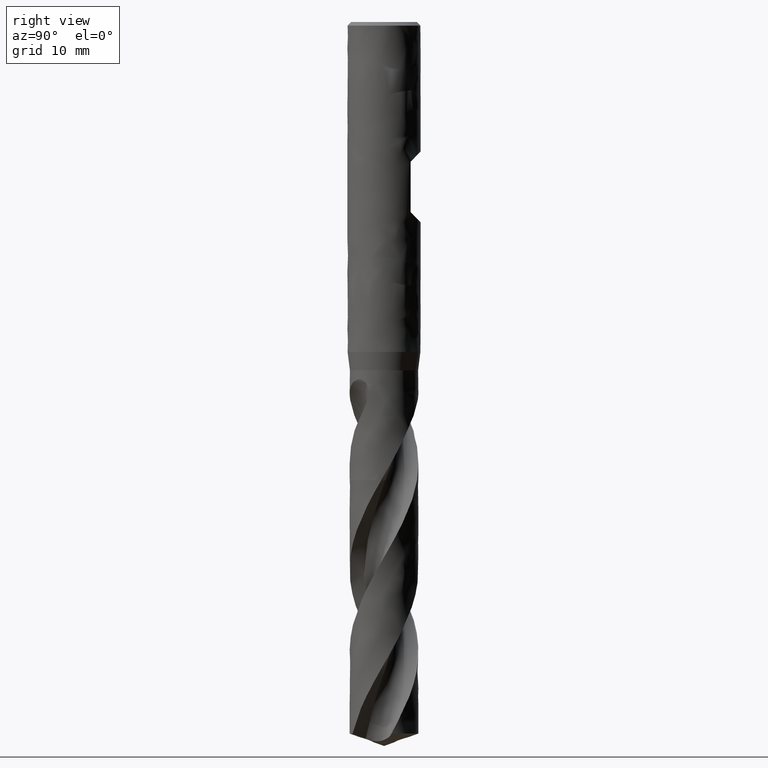
[diagram: clean part render]
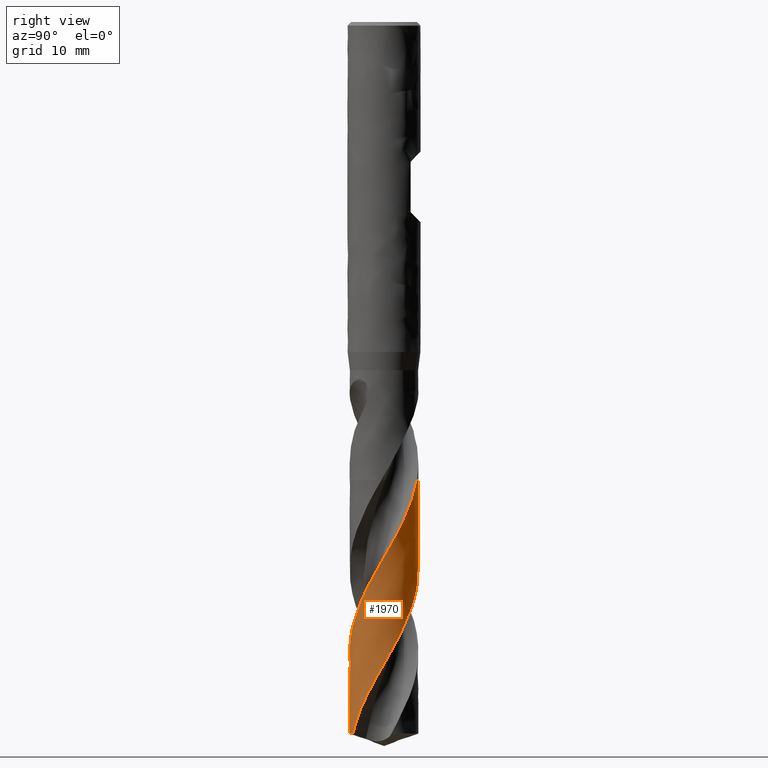
[diagram: same view with one face highlighted and labeled with its STEP entity id]
A machine part, right view. The second image highlights one B-rep face of the part: STEP entity #1970.
In plain terms, the highlighted face is a freeform B-spline surface patch.
Its self-contained STEP definition (entity closure, byte-faithful):
#1785 = VERTEX_POINT('', #1786);
#1786 = CARTESIAN_POINT('', (1.04154271346582, 3.60245593672238, -50.));
#1859 = EDGE_CURVE('', #1860, #1785, #1862, .T.);
#1860 = VERTEX_POINT('', #1861);
#1861 = CARTESIAN_POINT('', (-3.73763323144449, 0.30429891094419, -50.));
#1862 = CIRCLE('', #1863, 3.75);
#1863 = AXIS2_PLACEMENT_3D('', #1864, #1865, #1866);
#1864 = CARTESIAN_POINT('', (1.87469972832732E-31, 3.06161699786838E-15, -50.));
#1865 = DIRECTION('', (3.74939945665464E-33, 6.12323399573677E-17, -1.));
#1866 = DIRECTION('', (-1., 6.12323399573677E-17, 0.));
#1970 = ADVANCED_FACE('', (#1971), #2329, .T.);
#1971 = FACE_OUTER_BOUND('', #1972, .T.);
#1972 = EDGE_LOOP('', (#1973, #1974, #1995, #2142, #2157, #2166));
#1973 = ORIENTED_EDGE('', *, *, #1859, .T.);
#1974 = ORIENTED_EDGE('', *, *, #1975, .T.);
#1975 = EDGE_CURVE('', #1785, #1976, #1978, .T.);
#1976 = VERTEX_POINT('', #1977);
#1977 = CARTESIAN_POINT('', (2.12231105427422, 3.09164936383566, -52.0825378024235));
#1978 = B_SPLINE_CURVE_WITH_KNOTS('', 3, (#1979, #1980, #1981, #1982, #1983, #1984, #1985, #1986, #1987, #1988, #1989, #1990, #1991, #1992, #1993, #1994), .UNSPECIFIED., .F., .U., (4, 3, 3, 3, 3, 4), (4.22493399614493, 4.263254304105, 4.92914016551059, 5.59485713823136, 6.26040159204141, 6.62855283587075), .UNSPECIFIED.);
#1979 = CARTESIAN_POINT('', (1.04154271346582, 3.60245593672238, -50.));
#1980 = CARTESIAN_POINT('', (1.04767420185025, 3.60068319968917, -50.0110644891662));
#1981 = CARTESIAN_POINT('', (1.05380134570704, 3.59889475527219, -50.0221294699043));
#1982 = CARTESIAN_POINT('', (1.05992355171761, 3.59709077790834, -50.0331940497039));
#1983 = CARTESIAN_POINT('', (1.16630814620713, 3.56574335183506, -50.2254614829041));
#1984 = CARTESIAN_POINT('', (1.27129846578123, 3.52967297390715, -50.4177931305049));
#1985 = CARTESIAN_POINT('', (1.37444858898701, 3.48903870374506, -50.6100846204533));
#1986 = CARTESIAN_POINT('', (1.4775725502187, 3.44841473965618, -50.8023273394955));
#1987 = CARTESIAN_POINT('', (1.5789130772024, 3.40320656575116, -50.9946207052876));
#1988 = CARTESIAN_POINT('', (1.67802062703575, 3.3536169690712, -51.1868723277263));
#1989 = CARTESIAN_POINT('', (1.77710249339212, 3.30404022341285, -51.3790741286315));
#1990 = CARTESIAN_POINT('', (1.87399912467554, 3.25006105511055, -51.57132944958));
#1991 = CARTESIAN_POINT('', (1.96828265072365, 3.19192158532446, -51.7635455284882));
#1992 = CARTESIAN_POINT('', (2.02043633811225, 3.15976127207296, -51.8698713916653));
#1993 = CARTESIAN_POINT('', (2.0718020113401, 3.12632208623874, -51.9762075577137));
#1994 = CARTESIAN_POINT('', (2.12231105427424, 3.09164936383565, -52.0825378024235));
#1995 = ORIENTED_EDGE('', *, *, #1996, .T.);
#1996 = EDGE_CURVE('', #1976, #1997, #1999, .T.);
#1997 = VERTEX_POINT('', #1998);
#1998 = CARTESIAN_POINT('', (-3.43617038302737, -1.50174335317507, -76.3470629619583));
#1999 = B_SPLINE_CURVE_WITH_KNOTS('', 3, (#2000, #2001, #2002, #2003, #2004, #2005, #2006, #2007, #2008, #2009, #2010, #2011, #2012, #2013, #2014, #2015, #2016, #2017, #2018, #2019, #2020, #2021, #2022, #2023, #2024, #2025, #2026, #2027, #2028, #2029, #2030, #2031, #2032, #2033, #2034, #2035, #2036, #2037, #2038, #2039, #2040, #2041, #2042, #2043, #2044, #2045, #2046, #2047, #2048, #2049, #2050, #2051, #2052, #2053, #2054, #2055, #2056, #2057, #2058, #2059, #2060, #2061, #2062, #2063, #2064, #2065, #2066, #2067, #2068, #2069, #2070, #2071, #2072, #2073, #2074, #2075, #2076, #2077, #2078, #2079, #2080, #2081, #2082, #2083, #2084, #2085, #2086, #2087, #2088, #2089, #2090, #2091, #2092, #2093, #2094, #2095, #2096, #2097, #2098, #2099, #2100, #2101, #2102, #2103, #2104, #2105, #2106, #2107, #2108, #2109, #2110, #2111, #2112, #2113, #2114, #2115, #2116, #2117, #2118, #2119, #2120, #2121, #2122, #2123, #2124, #2125, #2126, #2127, #2128, #2129, #2130, #2131, #2132, #2133, #2134, #2135, #2136, #2137, #2138, #2139, #2140, #2141), .UNSPECIFIED., .F., .U., (4, 3, 3, 3, 3, 3, 3, 3, 3, 3, 3, 3, 3, 3, 3, 3, 3, 3, 3, 3, 3, 3, 3, 3, 3, 3, 3, 3, 3, 3, 3, 3, 3, 3, 3, 3, 3, 3, 3, 3, 3, 3, 3, 3, 3, 3, 3, 4), (0., 0.665283470093486, 1.33040322736771, 1.99536141557755, 2.66015908448309, 3.32479662870843, 3.9892737271427, 4.65358932876156, 5.31774195596763, 5.98172952567648, 6.64554920333383, 7.08830369718782, 7.28522671845545, 7.34361981511167, 8.01007826994293, 8.67634573911524, 9.34242935375426, 10.00833533205, 10.6740689170003, 11.3396344499327, 12.0050354250086, 12.6702745328975, 13.3353538178533, 14.0002748196554, 14.66503844812, 15.3296449731223, 15.9940940069931, 16.6583844795854, 17.3225146783069, 17.9864823354714, 18.6502844992903, 19.0930317859526, 19.1514062897894, 19.2098003654347, 19.8762377769943, 20.5424879373031, 21.2085578515747, 21.8744535281951, 22.5401800546359, 23.2057416689705, 23.8711418130003, 24.5363831776135, 25.2014678160893, 25.866397200264, 26.5311722105091, 27.1957931501971, 27.8602596743903, 27.9470729952028), .UNSPECIFIED.);
#2000 = CARTESIAN_POINT('', (2.12231105427422, 3.09164936383566, -52.0825378024235));
#2001 = CARTESIAN_POINT('', (2.213585583201, 3.0289925360657, -52.2746864243883));
#2002 = CARTESIAN_POINT('', (2.30209277909004, 2.96228272301321, -52.4668903628572));
#2003 = CARTESIAN_POINT('', (2.38744393614361, 2.89181801843946, -52.6590567387373));
#2004 = CARTESIAN_POINT('', (2.47277409000203, 2.8213706538057, -52.8511758263553));
#2005 = CARTESIAN_POINT('', (2.55499204850613, 2.74713537491073, -53.0433505011951));
#2006 = CARTESIAN_POINT('', (2.63373817416214, 2.66944249422255, -53.235487624503));
#2007 = CARTESIAN_POINT('', (2.71246517102562, 2.59176848647552, -53.4275780743887));
#2008 = CARTESIAN_POINT('', (2.78776060948934, 2.5106005475806, -53.6197242660085));
#2009 = CARTESIAN_POINT('', (2.85929672146781, 2.42629805642329, -53.8118325873265));
#2010 = CARTESIAN_POINT('', (2.93081556480123, 2.34201591568422, -54.0038945341586));
#2011 = CARTESIAN_POINT('', (2.99861112438257, 2.25456046014206, -54.1960124266926));
#2012 = CARTESIAN_POINT('', (3.06238971820787, 2.16431726274471, -54.3880922848595));
#2013 = CARTESIAN_POINT('', (3.12615295017585, 2.07409580152935, -54.5801258782345));
#2014 = CARTESIAN_POINT('', (3.18593126223863, 1.98104536683587, -54.7722154315133));
#2015 = CARTESIAN_POINT('', (3.24146671214938, 1.88557512553265, -54.9642670121578));
#2016 = CARTESIAN_POINT('', (3.29698875561135, 1.79012793107433, -55.1562722308896));
#2017 = CARTESIAN_POINT('', (3.34829637305584, 1.6922166872033, -55.3483330257061));
#2018 = CARTESIAN_POINT('', (3.3951685530711, 1.59227211752173, -55.5403563315629));
#2019 = CARTESIAN_POINT('', (3.44202934110938, 1.49235183871452, -55.7323329674104));
#2020 = CARTESIAN_POINT('', (3.48447969957298, 1.3903504313866, -55.9243646531916));
#2021 = CARTESIAN_POINT('', (3.52233723307764, 1.28671691388393, -56.1163592507478));
#2022 = CARTESIAN_POINT('', (3.56018547911521, 1.18310882045924, -56.308306746886));
#2023 = CARTESIAN_POINT('', (3.59346182054115, 1.07781836550222, -56.5003091874188));
#2024 = CARTESIAN_POINT('', (3.62202440873106, 0.971307975132732, -56.6922745054431));
#2025 = CARTESIAN_POINT('', (3.65057989844823, 0.864824055092111, -56.8841921155858));
#2026 = CARTESIAN_POINT('', (3.67443788310127, 0.757069127260198, -57.0761648891203));
#2027 = CARTESIAN_POINT('', (3.69349821235449, 0.648514421839836, -57.268100269087));
#2028 = CARTESIAN_POINT('', (3.71255372212325, 0.539987164933608, -57.459987117385));
#2029 = CARTESIAN_POINT('', (3.7268230755531, 0.430609118553042, -57.6519293775329));
#2030 = CARTESIAN_POINT('', (3.73624825760316, 0.320856599679057, -57.8438340180137));
#2031 = CARTESIAN_POINT('', (3.74253466616938, 0.247653857159071, -57.9718305882029));
#2032 = CARTESIAN_POINT('', (3.74666886677116, 0.174265562086716, -58.0998449305073));
#2033 = CARTESIAN_POINT('', (3.74864408651438, 0.100834084717466, -58.227849614264));
#2034 = CARTESIAN_POINT('', (3.74952260100695, 0.0681741149589963, -58.2847819987156));
#2035 = CARTESIAN_POINT('', (3.7499742382828, 0.0355033182866061, -58.3417163596757));
#2036 = CARTESIAN_POINT('', (3.74999892899185, 0.0028341771224092, -58.3986502548319));
#2037 = CARTESIAN_POINT('', (3.75000625046677, -0.00685312254116855, -58.4155327220084));
#2038 = CARTESIAN_POINT('', (3.7499760340604, -0.0165403526150887, -58.4324152871231));
#2039 = CARTESIAN_POINT('', (3.74990828352115, -0.0262271839785083, -58.4492978886508));
#2040 = CARTESIAN_POINT('', (3.7491350256827, -0.136785983431871, -58.6419842363878));
#2041 = CARTESIAN_POINT('', (3.74346753331175, -0.247321021714624, -58.8347264611532));
#2042 = CARTESIAN_POINT('', (3.73293483056548, -0.357347940743925, -59.0274309341948));
#2043 = CARTESIAN_POINT('', (3.72240514615465, -0.467343329580334, -59.2200801843031));
#2044 = CARTESIAN_POINT('', (3.70700791415603, -0.576884056691584, -59.4127847368436));
#2045 = CARTESIAN_POINT('', (3.68681491304155, -0.685489457961146, -59.6054520742608));
#2046 = CARTESIAN_POINT('', (3.66662748412587, -0.794064889892137, -59.7980662456973));
#2047 = CARTESIAN_POINT('', (3.64163698054536, -0.901759035050428, -59.9907354225905));
#2048 = CARTESIAN_POINT('', (3.61195718787033, -1.00809983285016, -60.1833675081149));
#2049 = CARTESIAN_POINT('', (3.58228531043255, -1.11441227086135, -60.375948221021));
#2050 = CARTESIAN_POINT('', (3.54791217555302, -1.21942407740834, -60.5685840932194));
#2051 = CARTESIAN_POINT('', (3.50899218307219, -1.32267677802952, -60.7611826388259));
#2052 = CARTESIAN_POINT('', (3.47008226640975, -1.42590274803246, -60.9537313234779));
#2053 = CARTESIAN_POINT('', (3.42660932795612, -1.52741979446514, -61.1463354607928));
#2054 = CARTESIAN_POINT('', (3.37876674298655, -1.62678680117837, -61.3389019778701));
#2055 = CARTESIAN_POINT('', (3.3309362349846, -1.7261287245454, -61.5314198851243));
#2056 = CARTESIAN_POINT('', (3.27871600116128, -1.8233680554336, -61.723993404359));
#2057 = CARTESIAN_POINT('', (3.22233682058247, -1.91808378719973, -61.9165292140174));
#2058 = CARTESIAN_POINT('', (3.16597157948318, -2.01277610095962, -62.1090174201287));
#2059 = CARTESIAN_POINT('', (3.10542322847474, -2.10499009608542, -62.3015610278939));
#2060 = CARTESIAN_POINT('', (3.04095868081014, -2.19432684475341, -62.4940672657491));
#2061 = CARTESIAN_POINT('', (2.97650981496054, -2.28364186112953, -62.6865266740318));
#2062 = CARTESIAN_POINT('', (2.90811592594204, -2.37012355026953, -62.8790408988907));
#2063 = CARTESIAN_POINT('', (2.8360786202381, -2.45339724867954, -63.0715183522095));
#2064 = CARTESIAN_POINT('', (2.76405862141427, -2.53665094067897, -63.2639495630409));
#2065 = CARTESIAN_POINT('', (2.68836175959992, -2.61673885486776, -63.4564352038427));
#2066 = CARTESIAN_POINT('', (2.60932136643278, -2.69331431635399, -63.6488842706378));
#2067 = CARTESIAN_POINT('', (2.53029978419989, -2.76987155353852, -63.841287536209));
#2068 = CARTESIAN_POINT('', (2.44789786475326, -2.84295526340649, -64.0337453678945));
#2069 = CARTESIAN_POINT('', (2.36247684065302, -2.91225053478887, -64.2261663948955));
#2070 = CARTESIAN_POINT('', (2.27707603397955, -2.98152940538364, -64.4185418797356));
#2071 = CARTESIAN_POINT('', (2.1886171021705, -3.04705451343843, -64.6109722595724));
#2072 = CARTESIAN_POINT('', (2.09748577038466, -3.10854522936917, -64.8033655003063));
#2073 = CARTESIAN_POINT('', (2.00637597564919, -3.17002141321068, -64.9957132727821));
#2074 = CARTESIAN_POINT('', (1.91255297931991, -3.2274935411592, -65.1881161587416));
#2075 = CARTESIAN_POINT('', (1.8164242283328, -3.28071684586244, -65.3804817599362));
#2076 = CARTESIAN_POINT('', (1.72031825687793, -3.33392753829335, -65.5728017764502));
#2077 = CARTESIAN_POINT('', (1.62186352883123, -3.38291583066813, -65.7651767486659));
#2078 = CARTESIAN_POINT('', (1.52148718809817, -3.42747381265752, -65.9575147343896));
#2079 = CARTESIAN_POINT('', (1.42113480074619, -3.47202116152048, -66.1498068213983));
#2080 = CARTESIAN_POINT('', (1.31881455933111, -3.51216119989166, -66.3421532659661));
#2081 = CARTESIAN_POINT('', (1.21497126083361, -3.5477238950274, -66.5344633768182));
#2082 = CARTESIAN_POINT('', (1.11115301668823, -3.58327800992446, -66.7267270888626));
#2083 = CARTESIAN_POINT('', (1.00576216428679, -3.61427419241133, -66.9190446896966));
#2084 = CARTESIAN_POINT('', (0.899256904697844, -3.64058196163103, -67.1113262250328));
#2085 = CARTESIAN_POINT('', (0.792777711580138, -3.66688329219491, -67.3035607007108));
#2086 = CARTESIAN_POINT('', (0.685133188818503, -3.68851125536604, -67.4958491783892));
#2087 = CARTESIAN_POINT('', (0.57678958488493, -3.70537633375725, -67.6881013690482));
#2088 = CARTESIAN_POINT('', (0.468472985497883, -3.72223720854274, -67.8803056410203));
#2089 = CARTESIAN_POINT('', (0.359406661445659, -3.73434556793546, -68.0725642717913));
#2090 = CARTESIAN_POINT('', (0.250060579950962, -3.74165333861313, -68.2647862474213));
#2091 = CARTESIAN_POINT('', (0.177128186042495, -3.74652752525403, -68.3929957694533));
#2092 = CARTESIAN_POINT('', (0.104052928374972, -3.7492684363103, -68.5212229128423));
#2093 = CARTESIAN_POINT('', (0.030974511340315, -3.74987207510432, -68.6494405165488));
#2094 = CARTESIAN_POINT('', (0.0213394069272952, -3.74995166252622, -68.6663455077819));
#2095 = CARTESIAN_POINT('', (0.0117040934227084, -3.74999411351618, -68.6832505954643));
#2096 = CARTESIAN_POINT('', (0.00206888815204913, -3.74999942929353, -68.7001557157222));
#2097 = CARTESIAN_POINT('', (-0.00756954761105747, -3.75000474685315, -68.7170665039302));
#2098 = CARTESIAN_POINT('', (-0.0172079093051034, -3.74997290429461, -68.7339773868632));
#2099 = CARTESIAN_POINT('', (-0.0268458720355188, -3.74990390532272, -68.7508883047449));
#2100 = CARTESIAN_POINT('', (-0.136841601290173, -3.74911643680444, -68.9438885058034));
#2101 = CARTESIAN_POINT('', (-0.246812701957823, -3.74348449290427, -69.1369435117987));
#2102 = CARTESIAN_POINT('', (-0.356281887935761, -3.73303672850022, -69.3299619039531));
#2103 = CARTESIAN_POINT('', (-0.465720315973601, -3.72259189964108, -69.5229260630547));
#2104 = CARTESIAN_POINT('', (-0.574709889714728, -3.70732888404041, -69.7159443951869));
#2105 = CARTESIAN_POINT('', (-0.682776929770256, -3.68731822117034, -69.9089265676905));
#2106 = CARTESIAN_POINT('', (-0.790814733576567, -3.66731297194653, -70.1018565311682));
#2107 = CARTESIAN_POINT('', (-0.897983085641512, -3.64255293153597, -70.2948406265066));
#2108 = CARTESIAN_POINT('', (-1.00381752273178, -3.61314964830648, -70.487788460691));
#2109 = CARTESIAN_POINT('', (-1.10962427452454, -3.5837540567005, -70.680685821529));
#2110 = CARTESIAN_POINT('', (-1.21414821931862, -3.54970370488631, -70.8736376443916));
#2111 = CARTESIAN_POINT('', (-1.31693869758027, -3.5111497357441, -71.0665528340248));
#2112 = CARTESIAN_POINT('', (-1.41970306510344, -3.47260556004407, -71.2594190195269));
#2113 = CARTESIAN_POINT('', (-1.52078226116081, -3.42954232897492, -71.4523400234995));
#2114 = CARTESIAN_POINT('', (-1.61974270087863, -3.38214925497833, -71.6452240874628));
#2115 = CARTESIAN_POINT('', (-1.71867862636443, -3.33476792107521, -71.8380603706694));
#2116 = CARTESIAN_POINT('', (-1.81554154976261, -3.28303750249832, -72.0309515421644));
#2117 = CARTESIAN_POINT('', (-1.90991712061362, -3.22718400349081, -72.2238058357393));
#2118 = CARTESIAN_POINT('', (-2.00426979523404, -3.17134405496656, -72.4166133413971));
#2119 = CARTESIAN_POINT('', (-2.09617941634956, -3.11135747974953, -72.6094752644192));
#2120 = CARTESIAN_POINT('', (-2.18525229444416, -3.04748624437035, -72.8023009602595));
#2121 = CARTESIAN_POINT('', (-2.27430391774981, -2.98363025010224, -72.9950806435587));
#2122 = CARTESIAN_POINT('', (-2.36056246499844, -2.91586105106417, -73.1879140302543));
#2123 = CARTESIAN_POINT('', (-2.443657732203, -2.84447480000166, -73.3807117627039));
#2124 = CARTESIAN_POINT('', (-2.52673342275322, -2.77310536703251, -73.573464073378));
#2125 = CARTESIAN_POINT('', (-2.6066875137802, -2.6980860769482, -73.7662699414706));
#2126 = CARTESIAN_POINT('', (-2.68317772477383, -2.61974374649078, -73.9590401323031));
#2127 = CARTESIAN_POINT('', (-2.75965008024416, -2.5414197039069, -74.1517653237483));
#2128 = CARTESIAN_POINT('', (-2.83269652092587, -2.45973702407826, -74.3445443969522));
#2129 = CARTESIAN_POINT('', (-2.9020061853436, -2.375049494269, -74.5372874096103));
#2130 = CARTESIAN_POINT('', (-2.97129975842065, -2.29038162601641, -74.7299856739133));
#2131 = CARTESIAN_POINT('', (-3.03689011555356, -2.20267151171315, -74.9227382377164));
#2132 = CARTESIAN_POINT('', (-3.09849998756297, -2.11229681320412, -75.1154543651941));
#2133 = CARTESIAN_POINT('', (-3.16009558065521, -2.02194306024799, -75.3081258281151));
#2134 = CARTESIAN_POINT('', (-3.21774007056463, -1.92888561621939, -75.5008517511924));
#2135 = CARTESIAN_POINT('', (-3.27119099994329, -1.83352377729061, -75.6935412117512));
#2136 = CARTESIAN_POINT('', (-3.32462951073683, -1.73818409436785, -75.8861859035755));
#2137 = CARTESIAN_POINT('', (-3.37390039211795, -1.64049823584966, -76.0788846604013));
#2138 = CARTESIAN_POINT('', (-3.41879671278301, -1.54088579611341, -76.2715475501965));
#2139 = CARTESIAN_POINT('', (-3.42466246906612, -1.52787131551449, -76.2967191798445));
#2140 = CARTESIAN_POINT('', (-3.43045383234444, -1.51482351238353, -76.321891048552));
#2141 = CARTESIAN_POINT('', (-3.43617038302737, -1.50174335317507, -76.3470629619583));
#2142 = ORIENTED_EDGE('', *, *, #2143, .T.);
#2143 = EDGE_CURVE('', #1997, #2144, #2146, .T.);
#2144 = VERTEX_POINT('', #2145);
#2145 = CARTESIAN_POINT('', (-3.66180923674555, -0.808488165457586, -77.6351116215018));
#2146 = B_SPLINE_CURVE_WITH_KNOTS('', 3, (#2147, #2148, #2149, #2150, #2151, #2152, #2153, #2154, #2155, #2156), .UNSPECIFIED., .F., .U., (4, 3, 3, 4), (0., 0.664293426355206, 1.32842970530103, 1.48052746733488), .UNSPECIFIED.);
#2147 = CARTESIAN_POINT('', (-3.43617038302737, -1.50174335317508, -76.3470629619583));
#2148 = CARTESIAN_POINT('', (-3.4799132902743, -1.4016542919972, -76.5396778331339));
#2149 = CARTESIAN_POINT('', (-3.51928408531012, -1.29964048826153, -76.7323444475238));
#2150 = CARTESIAN_POINT('', (-3.5541174590951, -1.19613924229375, -76.9249733105058));
#2151 = CARTESIAN_POINT('', (-3.58894259258409, -1.09266248091671, -77.1175566045786));
#2152 = CARTESIAN_POINT('', (-3.61924889566017, -0.987650045064768, -77.3101908126515));
#2153 = CARTESIAN_POINT('', (-3.64490951693937, -0.881552388303765, -77.5027872170026));
#2154 = CARTESIAN_POINT('', (-3.65078620699936, -0.857254338849218, -77.5468948542544));
#2155 = CARTESIAN_POINT('', (-3.65641985113987, -0.832897801658125, -77.5910033621771));
#2156 = CARTESIAN_POINT('', (-3.66180923674555, -0.808488165457571, -77.6351116215018));
#2157 = ORIENTED_EDGE('', *, *, #2158, .F.);
#2158 = EDGE_CURVE('', #2159, #2144, #2161, .T.);
#2159 = VERTEX_POINT('', #2160);
#2160 = CARTESIAN_POINT('', (1.5221107578736, -3.42719693638481, -77.6351116215018));
#2161 = CIRCLE('', #2162, 3.75);
#2162 = AXIS2_PLACEMENT_3D('', #2163, #2164, #2165);
#2163 = CARTESIAN_POINT('', (2.91085045330981E-31, 4.75377954743598E-15, -77.6351116215018));
#2164 = DIRECTION('', (3.74939945665464E-33, 6.12323399573677E-17, -1.));
#2165 = DIRECTION('', (-1., 6.12323399573677E-17, 0.));
#2166 = ORIENTED_EDGE('', *, *, #2167, .T.);
#2167 = EDGE_CURVE('', #2159, #1860, #2168, .T.);
#2168 = B_SPLINE_CURVE_WITH_KNOTS('', 3, (#2169, #2170, #2171, #2172, #2173, #2174, #2175, #2176, #2177, #2178, #2179, #2180, #2181, #2182, #2183, #2184, #2185, #2186, #2187, #2188, #2189, #2190, #2191, #2192, #2193, #2194, #2195, #2196, #2197, #2198, #2199, #2200, #2201, #2202, #2203, #2204, #2205, #2206, #2207, #2208, #2209, #2210, #2211, #2212, #2213, #2214, #2215, #2216, #2217, #2218, #2219, #2220, #2221, #2222, #2223, #2224, #2225, #2226, #2227, #2228, #2229, #2230, #2231, #2232, #2233, #2234, #2235, #2236, #2237, #2238, #2239, #2240, #2241, #2242, #2243, #2244, #2245, #2246, #2247, #2248, #2249, #2250, #2251, #2252, #2253, #2254, #2255, #2256, #2257, #2258, #2259, #2260, #2261, #2262, #2263, #2264, #2265, #2266, #2267, #2268, #2269, #2270, #2271, #2272, #2273, #2274, #2275, #2276, #2277, #2278, #2279, #2280, #2281, #2282, #2283, #2284, #2285, #2286, #2287, #2288, #2289, #2290, #2291, #2292, #2293, #2294, #2295, #2296, #2297, #2298, #2299, #2300, #2301, #2302, #2303, #2304, #2305, #2306, #2307, #2308, #2309, #2310, #2311, #2312, #2313, #2314, #2315, #2316, #2317, #2318, #2319, #2320, #2321, #2322, #2323, #2324, #2325, #2326, #2327, #2328), .UNSPECIFIED., .F., .U., (4, 3, 3, 3, 3, 3, 3, 3, 3, 3, 3, 3, 3, 3, 3, 3, 3, 3, 3, 3, 3, 3, 3, 3, 3, 3, 3, 3, 3, 3, 3, 3, 3, 3, 3, 3, 3, 3, 3, 3, 3, 3, 3, 3, 3, 3, 3, 3, 3, 3, 3, 3, 3, 4), (0., 0.665615938312986, 1.33106981870901, 1.99636416962055, 2.66150093696937, 3.32648136471202, 3.99130600834454, 4.6559747032928, 5.32048666550956, 5.9848407622031, 6.64903524772549, 7.31306767066533, 7.97693481026115, 8.64063260041697, 8.72818589533489, 8.78657893060514, 9.45301977852953, 10.1192743999425, 10.7853492978207, 11.4512500258956, 12.1169812115842, 12.7825466166352, 13.4479491801268, 14.1131910653878, 14.7782738926021, 15.4431987304651, 16.1079660182511, 16.7725755497115, 17.4370264467215, 18.1013171321927, 18.7654454497467, 19.4294086559326, 20.0932032863486, 20.5359457280914, 20.5943201300035, 20.6527100747837, 21.319163783734, 21.9854291554748, 22.6515127785368, 23.3174202406249, 23.9831562113989, 24.648724504469, 25.3141281226992, 25.9793693194891, 26.6444497273156, 27.3093703814855, 27.9741316618367, 28.6387334378232, 29.3031746457987, 29.9674539015797, 30.631569509236, 31.0744577419147, 31.7382962043755, 31.8302924041851), .UNSPECIFIED.);
#2169 = CARTESIAN_POINT('', (1.5221107578736, -3.42719693638481, -77.6351116215017));
#2170 = CARTESIAN_POINT('', (1.62236692302693, -3.3826704646484, -77.4422560539828));
#2171 = CARTESIAN_POINT('', (1.72069883412994, -3.33372664299402, -77.2493600066725));
#2172 = CARTESIAN_POINT('', (1.81668139565208, -3.28057444766791, -77.0565145574775));
#2173 = CARTESIAN_POINT('', (1.91264058824164, -3.22743519333909, -76.8637160604811));
#2174 = CARTESIAN_POINT('', (2.00629581587175, -3.17006513541411, -76.6708769067174));
#2175 = CARTESIAN_POINT('', (2.09724262560069, -3.10870927707361, -76.4780885671205));
#2176 = CARTESIAN_POINT('', (2.18816763262007, -3.04736812759384, -76.2853464447376));
#2177 = CARTESIAN_POINT('', (2.2764270200649, -2.9820150866588, -76.0925636074894));
#2178 = CARTESIAN_POINT('', (2.36163944318696, -2.91292964906185, -75.8998315019145));
#2179 = CARTESIAN_POINT('', (2.44683168264564, -2.84386057524338, -75.7071450474289));
#2180 = CARTESIAN_POINT('', (2.52901775202632, -2.77102892566939, -75.5144181584115));
#2181 = CARTESIAN_POINT('', (2.60784156161221, -2.69474718471473, -75.3217416746268));
#2182 = CARTESIAN_POINT('', (2.68664684375539, -2.61848337369258, -75.1291104792204));
#2183 = CARTESIAN_POINT('', (2.76212866593491, -2.53873502392703, -74.9364391814636));
#2184 = CARTESIAN_POINT('', (2.83395898228344, -2.45584537109627, -74.7438179730886));
#2185 = CARTESIAN_POINT('', (2.90577247103608, -2.37297513671795, -74.5512418898365));
#2186 = CARTESIAN_POINT('', (2.97397062898739, -2.28692527945758, -74.3586258586149));
#2187 = CARTESIAN_POINT('', (3.03825656558671, -2.19806665996944, -74.1660598573279));
#2188 = CARTESIAN_POINT('', (3.10252742255966, -2.10922888415028, -73.9735390264701));
#2189 = CARTESIAN_POINT('', (3.16291856480814, -2.01754131901503, -73.7809779923776));
#2190 = CARTESIAN_POINT('', (3.21916738439106, -1.9233983860014, -73.5884673634716));
#2191 = CARTESIAN_POINT('', (3.27540294017624, -1.82927765243714, -73.3960021296878));
#2192 = CARTESIAN_POINT('', (3.32752425428568, -1.73265904736924, -73.2034962752513));
#2193 = CARTESIAN_POINT('', (3.37530496920152, -1.63395727143752, -73.0110411398388));
#2194 = CARTESIAN_POINT('', (3.42307433303868, -1.53527894370296, -72.8186317252446));
#2195 = CARTESIAN_POINT('', (3.46652703645686, -1.43447324000702, -72.6261816290163));
#2196 = CARTESIAN_POINT('', (3.50547400442724, -1.33197297430723, -72.4337822097662));
#2197 = CARTESIAN_POINT('', (3.54441161538274, -1.22949733431162, -72.2414290145053));
#2198 = CARTESIAN_POINT('', (3.57886362290163, -1.12528058170071, -72.0490353592525));
#2199 = CARTESIAN_POINT('', (3.60867937070204, -1.01977115053801, -71.8566921057048));
#2200 = CARTESIAN_POINT('', (3.63848784349913, -0.914287463538006, -71.6643957836584));
#2201 = CARTESIAN_POINT('', (3.66367633767484, -0.807461994098559, -71.4720593153241));
#2202 = CARTESIAN_POINT('', (3.68413383541045, -0.699755587890682, -71.2797729414067));
#2203 = CARTESIAN_POINT('', (3.70458624110007, -0.592075990727627, -71.0875344292107));
#2204 = CARTESIAN_POINT('', (3.72031978559446, -0.48346431515762, -70.8952559469514));
#2205 = CARTESIAN_POINT('', (3.7312641760821, -0.374389701096415, -70.7030274605107));
#2206 = CARTESIAN_POINT('', (3.7422057747063, -0.265342911465293, -70.5108480106688));
#2207 = CARTESIAN_POINT('', (3.74836590894739, -0.155781364131952, -70.3186284032261));
#2208 = CARTESIAN_POINT('', (3.74971567389717, -0.0461775370868155, -70.1264591000518));
#2209 = CARTESIAN_POINT('', (3.74989373139633, -0.0317188838627892, -70.1011086228851));
#2210 = CARTESIAN_POINT('', (3.74998816258032, -0.0172589987844963, -70.0757581229634));
#2211 = CARTESIAN_POINT('', (3.749998955435, -0.00279897060070519, -70.0504078070177));
#2212 = CARTESIAN_POINT('', (3.75000615365118, 0.00684504035897868, -70.0335005975915));
#2213 = CARTESIAN_POINT('', (3.74997614887035, 0.016489160156335, -70.0165933934754));
#2214 = CARTESIAN_POINT('', (3.74990894058678, 0.0261330692292202, -69.999686257981));
#2215 = CARTESIAN_POINT('', (3.74914189113845, 0.136199191157878, -69.8067247915541));
#2216 = CARTESIAN_POINT('', (3.74352397375434, 0.246266806758683, -69.613722649047));
#2217 = CARTESIAN_POINT('', (3.73307728230774, 0.355856718804323, -69.4207713989796));
#2218 = CARTESIAN_POINT('', (3.72263351002629, 0.465416007656522, -69.2278740661328));
#2219 = CARTESIAN_POINT('', (3.70735876746524, 0.574549561934559, -69.0349356840635));
#2220 = CARTESIAN_POINT('', (3.68731702754461, 0.682783375881143, -68.8420485114671));
#2221 = CARTESIAN_POINT('', (3.66728069392396, 0.790987993536999, -68.6492133705766));
#2222 = CARTESIAN_POINT('', (3.6424706354738, 0.898343611723302, -68.4563370481546));
#2223 = CARTESIAN_POINT('', (3.61299217836421, 1.00438414915761, -68.2635119706974));
#2224 = CARTESIAN_POINT('', (3.58352142948248, 1.11039695838955, -68.0707373144556));
#2225 = CARTESIAN_POINT('', (3.54937097374527, 1.21514476029844, -67.877921619387));
#2226 = CARTESIAN_POINT('', (3.51068686374107, 1.31817212258335, -67.685156967275));
#2227 = CARTESIAN_POINT('', (3.47201260294718, 1.42117325347354, -67.4924413942189));
#2228 = CARTESIAN_POINT('', (3.42878866679632, 1.52250355052102, -67.2996850528268));
#2229 = CARTESIAN_POINT('', (3.38120090980017, 1.62172143340541, -67.1069794727027));
#2230 = CARTESIAN_POINT('', (3.3336250031257, 1.72091460901419, -66.9143218801969));
#2231 = CARTESIAN_POINT('', (3.28166454976482, 1.81804411510756, -66.721623732757));
#2232 = CARTESIAN_POINT('', (3.22554374561223, 1.91268595047432, -66.528976180805));
#2233 = CARTESIAN_POINT('', (3.16943667234048, 2.00730463015428, -66.3363757632557));
#2234 = CARTESIAN_POINT('', (3.10914422541456, 2.09948250635936, -66.1437347294077));
#2235 = CARTESIAN_POINT('', (3.04492668917634, 2.18881736504936, -65.9511444645499));
#2236 = CARTESIAN_POINT('', (2.98072465988183, 2.27813065158468, -65.7586007054687));
#2237 = CARTESIAN_POINT('', (2.91256900830178, 2.36464467482331, -65.5660160036783));
#2238 = CARTESIAN_POINT('', (2.84075360677031, 2.44798262772053, -65.3734823791132));
#2239 = CARTESIAN_POINT('', (2.76895537616228, 2.53130065467458, -65.180994788965));
#2240 = CARTESIAN_POINT('', (2.69346565693536, 2.61148300806466, -64.9884660818431));
#2241 = CARTESIAN_POINT('', (2.61460992702195, 2.68818059838217, -64.7959885366739));
#2242 = CARTESIAN_POINT('', (2.5357729291598, 2.76485996931098, -64.6035567142347));
#2243 = CARTESIAN_POINT('', (2.45353473040768, 2.83809199425892, -64.4110838648323));
#2244 = CARTESIAN_POINT('', (2.36825046562647, 2.90755734802601, -64.2186620280986));
#2245 = CARTESIAN_POINT('', (2.28298640845629, 2.97700624238112, -64.0262857846011));
#2246 = CARTESIAN_POINT('', (2.19463742686579, 3.04272304161911, -63.8338687456535));
#2247 = CARTESIAN_POINT('', (2.10358592995884, 3.1044204346833, -63.641502469933));
#2248 = CARTESIAN_POINT('', (2.01255604053749, 3.16610318630196, -63.4491818447693));
#2249 = CARTESIAN_POINT('', (1.91878124066347, 3.22379800861461, -63.2568206349575));
#2250 = CARTESIAN_POINT('', (1.82266818123971, 3.27725200451481, -63.0645100122422));
#2251 = CARTESIAN_POINT('', (1.72657806286875, 3.33069324157715, -62.8722452918025));
#2252 = CARTESIAN_POINT('', (1.62810446897802, 3.37992144856326, -62.6799399754884));
#2253 = CARTESIAN_POINT('', (1.52767439565196, 3.42472056391021, -62.4876853551826));
#2254 = CARTESIAN_POINT('', (1.42726853789495, 3.46950887735256, -62.2954770910617));
#2255 = CARTESIAN_POINT('', (1.32485935985027, 3.50989157822851, -62.1032279589111));
#2256 = CARTESIAN_POINT('', (1.22089017959771, 3.54569135280582, -61.911029801305));
#2257 = CARTESIAN_POINT('', (1.11694641180335, 3.58148237709509, -61.7188786213479));
#2258 = CARTESIAN_POINT('', (1.01139471097793, 3.61270949510113, -61.5266863872456));
#2259 = CARTESIAN_POINT('', (0.904691650655085, 3.63923522422434, -61.3345452337826));
#2260 = CARTESIAN_POINT('', (0.798015118169995, 3.6657543586891, -61.1424518492339));
#2261 = CARTESIAN_POINT('', (0.690137919226642, 3.68758683012148, -60.9503174667009));
#2262 = CARTESIAN_POINT('', (0.581527097148578, 3.70463577633246, -60.7582340519463));
#2263 = CARTESIAN_POINT('', (0.472943850624073, 3.72168039393125, -60.5661994058722));
#2264 = CARTESIAN_POINT('', (0.363576063052817, 3.73395194230434, -60.3741239610132));
#2265 = CARTESIAN_POINT('', (0.253898063927847, 3.74139489671094, -60.1820992630045));
#2266 = CARTESIAN_POINT('', (0.180744255636835, 3.74635925113137, -60.0540212705417));
#2267 = CARTESIAN_POINT('', (0.10743296792514, 3.74917796810329, -59.9259320088668));
#2268 = CARTESIAN_POINT('', (0.0341060676110319, 3.7498449002795, -59.7978585239942));
#2269 = CARTESIAN_POINT('', (0.0244381127317643, 3.74993283349582, -59.7809723789687));
#2270 = CARTESIAN_POINT('', (0.0147697345871484, 3.74998337790059, -59.7640862401803));
#2271 = CARTESIAN_POINT('', (0.0051012591378761, 3.74999653028576, -59.7472001693785));
#2272 = CARTESIAN_POINT('', (-0.00456979065619357, 3.7500096861729, -59.7303096024626));
#2273 = CARTESIAN_POINT('', (-0.0142409732307528, 3.74998543017655, -59.7134190409988));
#2274 = CARTESIAN_POINT('', (-0.0239119634558109, 3.74992376162552, -59.6965285474301));
#2275 = CARTESIAN_POINT('', (-0.134295135232729, 3.749219886417, -59.5037430922079));
#2276 = CARTESIAN_POINT('', (-0.244682564413993, 3.74363717640721, -59.3109163186755));
#2277 = CARTESIAN_POINT('', (-0.354591087736938, 3.73319771248428, -59.1181410456474));
#2278 = CARTESIAN_POINT('', (-0.464468551341407, 3.72276119871299, -58.925420250157));
#2279 = CARTESIAN_POINT('', (-0.573919608355548, 3.70746573271694, -58.7326579140346));
#2280 = CARTESIAN_POINT('', (-0.682465781198642, 3.68737582265397, -58.5399472326567));
#2281 = CARTESIAN_POINT('', (-0.790982344032963, 3.66729139286173, -58.34728912029));
#2282 = CARTESIAN_POINT('', (-0.898645780888213, 3.64240564247802, -58.1545894581094));
#2283 = CARTESIAN_POINT('', (-1.00498528547224, 3.61282501319734, -57.9619414030288));
#2284 = CARTESIAN_POINT('', (-1.11129666615402, 3.58325220718732, -57.7693442981109));
#2285 = CARTESIAN_POINT('', (-1.21633532816957, 3.548972934777, -57.5767057884597));
#2286 = CARTESIAN_POINT('', (-1.31964131532939, 3.5101348690436, -57.3841187094343));
#2287 = CARTESIAN_POINT('', (-1.42292069807268, 3.47130680528692, -57.1915812274072));
#2288 = CARTESIAN_POINT('', (-1.52451794983775, 3.42790360610797, -56.999002535331));
#2289 = CARTESIAN_POINT('', (-1.62398745385552, 3.38011312676364, -56.8064750846265));
#2290 = CARTESIAN_POINT('', (-1.72343190467088, 3.33233468432011, -56.6139961254596));
#2291 = CARTESIAN_POINT('', (-1.82079792355415, 3.28014798173908, -56.4214760552038));
#2292 = CARTESIAN_POINT('', (-1.91565809165547, 3.22377947072609, -56.2290071809508));
#2293 = CARTESIAN_POINT('', (-2.01049478946355, 3.1674249064044, -56.0365859273273));
#2294 = CARTESIAN_POINT('', (-2.10287275916588, 3.1068633539856, -55.844123436791));
#2295 = CARTESIAN_POINT('', (-2.192386775218, 3.04235767585753, -55.6517123315071));
#2296 = CARTESIAN_POINT('', (-2.28187894138081, 2.97786774321815, -55.459348192738));
#2297 = CARTESIAN_POINT('', (-2.36855126915852, 2.9094048479835, -55.266942603703));
#2298 = CARTESIAN_POINT('', (-2.45202390609656, 2.83726607210727, -55.0745885629386));
#2299 = CARTESIAN_POINT('', (-2.53547636767741, 2.76514473219117, -54.8822810141938));
#2300 = CARTESIAN_POINT('', (-2.6157702226746, 2.68931511866587, -54.6899319689024));
#2301 = CARTESIAN_POINT('', (-2.69255343537874, 2.61010651078268, -54.4976344676097));
#2302 = CARTESIAN_POINT('', (-2.76931820460018, 2.53091692896701, -54.3053831565649));
#2303 = CARTESIAN_POINT('', (-2.84261050801006, 2.448312310986, -54.113090461451));
#2304 = CARTESIAN_POINT('', (-2.91210849573575, 2.36265192295939, -53.9208491706589));
#2305 = CARTESIAN_POINT('', (-2.98158982559462, 2.2770120667407, -53.728653957889));
#2306 = CARTESIAN_POINT('', (-3.04731199245316, 2.1882767879755, -53.5364175129833));
#2307 = CARTESIAN_POINT('', (-3.10898579251419, 2.09683269288347, -53.3442322902355));
#2308 = CARTESIAN_POINT('', (-3.17064479442048, 2.00541053909988, -53.1520931808562));
#2309 = CARTESIAN_POINT('', (-3.22828725357055, 1.91123654890422, -52.9599129661075));
#2310 = CARTESIAN_POINT('', (-3.28165909648857, 1.81472134897727, -52.767783992139));
#2311 = CARTESIAN_POINT('', (-3.33501804475151, 1.71822946715484, -52.5757014365947));
#2312 = CARTESIAN_POINT('', (-3.38413423712645, 1.61935084008659, -52.3835777310751));
#2313 = CARTESIAN_POINT('', (-3.42879078353122, 1.51851696163441, -52.1915051130858));
#2314 = CARTESIAN_POINT('', (-3.47343644526237, 1.41770766062822, -51.9994793112506));
#2315 = CARTESIAN_POINT('', (-3.51364601231585, 1.31489597563353, -51.8074118148973));
#2316 = CARTESIAN_POINT('', (-3.54924236982693, 1.21052823189937, -51.6153963669484));
#2317 = CARTESIAN_POINT('', (-3.58482995801832, 1.10618619961924, -51.4234282228521));
#2318 = CARTESIAN_POINT('', (-3.61582369100895, 1.00023828476989, -51.2314198014265));
#2319 = CARTESIAN_POINT('', (-3.64208502736384, 0.893149849382696, -51.0394616974022));
#2320 = CARTESIAN_POINT('', (-3.65959829871587, 0.821734259473062, -50.9114478629741));
#2321 = CARTESIAN_POINT('', (-3.67501261197328, 0.749793225617595, -50.783421743168));
#2322 = CARTESIAN_POINT('', (-3.68829751207149, 0.67746694564923, -50.6554105576571));
#2323 = CARTESIAN_POINT('', (-3.70821004757012, 0.569058180306085, -50.4635365309905));
#2324 = CARTESIAN_POINT('', (-3.72334502369627, 0.459736580522665, -50.2716209154055));
#2325 = CARTESIAN_POINT('', (-3.73363431507575, 0.349963999990972, -50.0797649208971));
#2326 = CARTESIAN_POINT('', (-3.73506022779273, 0.334751473415199, -50.0531770935813));
#2327 = CARTESIAN_POINT('', (-3.73639331352898, 0.319528536284871, -50.0265873629533));
#2328 = CARTESIAN_POINT('', (-3.73763323144449, 0.30429891094419, -50.));
#2329 = (
   BOUNDED_SURFACE ()
   B_SPLINE_SURFACE (2, 1, ((#2330, #2331), (#2332, #2333), (#2334, #2335), (#2336, #2337), (#2338, #2339), (#2340, #2341), (#2342, #2343), (#2344, #2345), (#2346, #2347)), .UNSPECIFIED., .F., .F., .U.)
   B_SPLINE_SURFACE_WITH_KNOTS ((3, 2, 2, 2, 3), (2, 2), (0.332944647119228, 5.89048622548086, 11.7809724509617, 17.6714586764426, 23.5619449019234), (0.302761857077503, 1.), .UNSPECIFIED.)
   GEOMETRIC_REPRESENTATION_ITEM ()
   RATIONAL_B_SPLINE_SURFACE (((0.968761384296309, 0.968761384296309), (0.723661820218746, 0.723661820218745), (1., 1.), (0.707106781186548, 0.707106781186548), (1., 1.), (0.707106781186548, 0.707106781186548), (1., 1.), (0.707106781186548, 0.707106781186548), (1., 1.)))
   REPRESENTATION_ITEM ('')
   SURFACE ()
);
#2330 = CARTESIAN_POINT('', (-3.73763323144449, 0.304298910944189, -50.));
#2331 = CARTESIAN_POINT('', (-3.73763323144449, 0.30429891094419, -77.6351116215018));
#2332 = CARTESIAN_POINT('', (-3.45710193692963, 3.75, -50.));
#2333 = CARTESIAN_POINT('', (-3.45710193692963, 3.75, -77.6351116215018));
#2334 = CARTESIAN_POINT('', (1.4791141972894E-31, 3.75, -50.));
#2335 = CARTESIAN_POINT('', (2.95822839457879E-31, 3.75, -77.6351116215018));
#2336 = CARTESIAN_POINT('', (3.75, 3.75, -50.));
#2337 = CARTESIAN_POINT('', (3.75, 3.75, -77.6351116215018));
#2338 = CARTESIAN_POINT('', (3.75, 3.29123827270851E-15, -50.));
#2339 = CARTESIAN_POINT('', (3.75, 4.98340082227611E-15, -77.6351116215018));
#2340 = CARTESIAN_POINT('', (3.75, -3.75, -50.));
#2341 = CARTESIAN_POINT('', (3.75, -3.74999999999999, -77.6351116215018));
#2342 = CARTESIAN_POINT('', (4.59242549680258E-16, -3.75, -50.));
#2343 = CARTESIAN_POINT('', (4.59242549680258E-16, -3.75, -77.6351116215018));
#2344 = CARTESIAN_POINT('', (-3.75, -3.75, -50.));
#2345 = CARTESIAN_POINT('', (-3.75, -3.75, -77.6351116215018));
#2346 = CARTESIAN_POINT('', (-3.75, 3.29123827270851E-15, -50.));
#2347 = CARTESIAN_POINT('', (-3.75, 4.98340082227611E-15, -77.6351116215018));